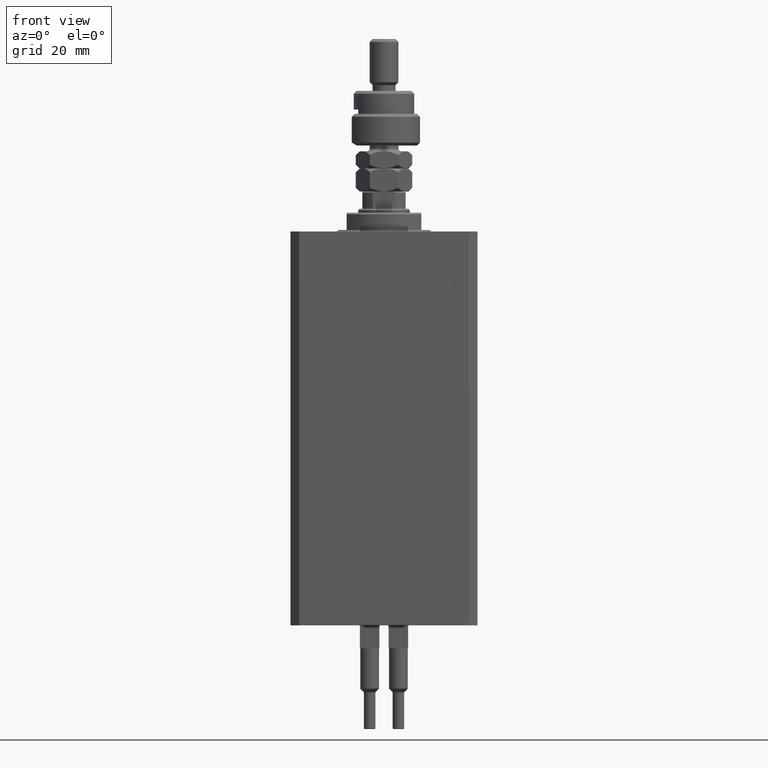
[diagram: clean part render]
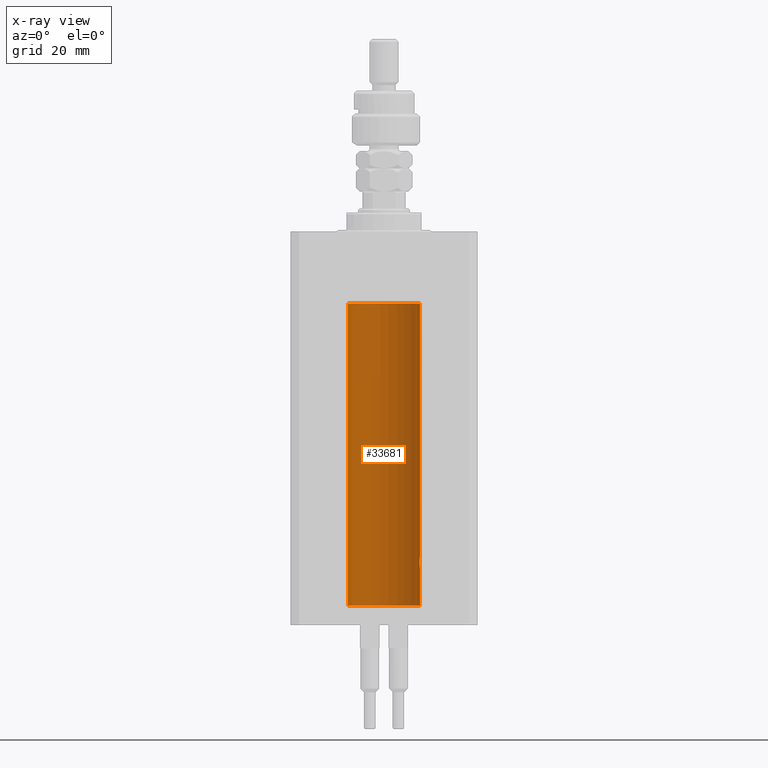
[diagram: x-ray — body ghosted, one internal face saturated and labeled with its STEP entity id]
A machine part, front view, then the same camera in x-ray: the body is ghosted and one INTERNAL B-rep face — a face not visible from any outside direction — is saturated and labeled: STEP entity #33681.
In plain terms, the highlighted cylindrical surface (edge-blend (fillet) strip) has radius 12.5 mm, axis along (0, 0, 1).
Its self-contained STEP definition (entity closure, byte-faithful):
#34 = ORIENTED_EDGE ( 'NONE', *, *, #10810, .T. ) ;
#244 = ORIENTED_EDGE ( 'NONE', *, *, #25329, .T. ) ;
#469 = CYLINDRICAL_SURFACE ( 'NONE', #16538, 12.50000000000000000 ) ;
#1105 = CARTESIAN_POINT ( 'NONE',  ( 12.34110728646152388, 1.986893050944454453, -114.7366134776498541 ) ) ;
#1385 = CARTESIAN_POINT ( 'NONE',  ( 12.50000000000000000, 0.000000000000000000, -130.0999999999999943 ) ) ;
#3225 = EDGE_CURVE ( 'NONE', #36380, #7793, #26265, .T. ) ;
#3846 = VERTEX_POINT ( 'NONE', #20055 ) ;
#5346 = CARTESIAN_POINT ( 'NONE',  ( 0.000000000000000000, 0.000000000000000000, -25.10000000000000142 ) ) ;
#5688 = LINE ( 'NONE', #21364, #40889 ) ;
#6203 = CARTESIAN_POINT ( 'NONE',  ( 12.50000000000000000, 2.320363022323678888E-15, -117.0000000000000142 ) ) ;
#6712 = CIRCLE ( 'NONE', #12438, 12.50000000000000000 ) ;
#6849 = DIRECTION ( 'NONE',  ( 1.000000000000000000, 0.000000000000000000, 0.000000000000000000 ) ) ;
#7046 = ORIENTED_EDGE ( 'NONE', *, *, #34419, .T. ) ;
#7421 = DIRECTION ( 'NONE',  ( -0.000000000000000000, -0.000000000000000000, 1.000000000000000000 ) ) ;
#7793 = VERTEX_POINT ( 'NONE', #9129 ) ;
#8812 = CARTESIAN_POINT ( 'NONE',  ( 12.34924836377099844, 1.935649219704934865, -114.4800206212716631 ) ) ;
#9129 = CARTESIAN_POINT ( 'NONE',  ( 12.33896267925302759, 2.000000000000247802, -115.0000000000000142 ) ) ;
#9410 = CARTESIAN_POINT ( 'NONE',  ( -12.50000000000000000, 1.530808498934191521E-15, -130.0999999999999943 ) ) ;
#10810 = EDGE_CURVE ( 'NONE', #16722, #13413, #6712, .T. ) ;
#11659 = CARTESIAN_POINT ( 'NONE',  ( 12.43037348241797524, 1.320834183883837554, -113.4924383770429728 ) ) ;
#12037 = FACE_OUTER_BOUND ( 'NONE', #40180, .T. ) ;
#12158 = CARTESIAN_POINT ( 'NONE',  ( 12.33896267925302759, 2.000000000000247802, -115.0000000000000142 ) ) ;
#12438 = AXIS2_PLACEMENT_3D ( 'NONE', #5346, #44689, #21025 ) ;
#13413 = VERTEX_POINT ( 'NONE', #40902 ) ;
#14267 = CARTESIAN_POINT ( 'NONE',  ( 12.50000000000000000, 0.000000000000000000, -25.10000000000000142 ) ) ;
#14540 = CARTESIAN_POINT ( 'NONE',  ( 12.43016561391612917, 1.322713721413880661, -116.5057887783670196 ) ) ;
#15040 = CARTESIAN_POINT ( 'NONE',  ( 12.49789833780794446, 0.2625555164371021766, -116.9869817082214922 ) ) ;
#15518 = LINE ( 'NONE', #47171, #18572 ) ;
#15752 = CARTESIAN_POINT ( 'NONE',  ( 12.50000000000000000, -7.266276684081261841E-23, -113.0000000000000142 ) ) ;
#15997 = CARTESIAN_POINT ( 'NONE',  ( 12.48395395845270528, 0.6446573166014707423, -113.1022212421351583 ) ) ;
#16538 = AXIS2_PLACEMENT_3D ( 'NONE', #31311, #7421, #31049 ) ;
#16722 = VERTEX_POINT ( 'NONE', #14267 ) ;
#18140 = CARTESIAN_POINT ( 'NONE',  ( 12.50000000000000178, 0.1324055009716466613, -117.0000000000000426 ) ) ;
#18395 = CARTESIAN_POINT ( 'NONE',  ( 12.50000000000000000, 2.320363022323678888E-15, -117.0000000000000142 ) ) ;
#18572 = VECTOR ( 'NONE', #46660, 1000.000000000000000 ) ;
#20055 = CARTESIAN_POINT ( 'NONE',  ( 12.50000000000000000, -7.266276684081261841E-23, -113.0000000000000142 ) ) ;
#20118 = CARTESIAN_POINT ( 'NONE',  ( 12.33896267925302581, 2.000000000000247358, -114.8693470594992334 ) ) ;
#21025 = DIRECTION ( 'NONE',  ( 1.000000000000000000, 0.000000000000000000, 0.000000000000000000 ) ) ;
#21364 = CARTESIAN_POINT ( 'NONE',  ( 12.50000000000000000, 0.000000000000000000, -130.0999999999999943 ) ) ;
#22099 = VERTEX_POINT ( 'NONE', #9410 ) ;
#23733 = CARTESIAN_POINT ( 'NONE',  ( 12.44079117518645639, 1.220047488436368122, -113.4098967633508437 ) ) ;
#23966 = AXIS2_PLACEMENT_3D ( 'NONE', #50032, #34083, #6849 ) ;
#24236 = CARTESIAN_POINT ( 'NONE',  ( 12.39867611624532806, 1.590019252152828910, -113.7798449592961276 ) ) ;
#24491 = CARTESIAN_POINT ( 'NONE',  ( 12.35520276972935427, 1.897773362058238877, -114.3552827863433947 ) ) ;
#25317 = ORIENTED_EDGE ( 'NONE', *, *, #48397, .F. ) ;
#25329 = EDGE_CURVE ( 'NONE', #28961, #36380, #5688, .T. ) ;
#26114 = CARTESIAN_POINT ( 'NONE',  ( 12.44079900692650931, 1.220007525301739282, -116.5901757908366534 ) ) ;
#26265 = B_SPLINE_CURVE_WITH_KNOTS ( 'NONE', 3,
 ( #18395, #18140, #15040, #30468, #34324, #38450, #46433, #26114, #14540, #26876, #34840, #37946, #33825, #42314 ),
 .UNSPECIFIED., .F., .F.,
 ( 4, 2, 2, 2, 2, 2, 4 ),
 ( 2.254408494944823136E-18, 0.0003915305205218102386, 0.0007830610410436180920, 0.001174591561565426108, 0.001566122082087234016, 0.002349183123130850048, 0.003132244164174466730 ),
 .UNSPECIFIED. ) ;
#26876 = CARTESIAN_POINT ( 'NONE',  ( 12.39869754437268590, 1.598954131913722820, -116.2293215281301286 ) ) ;
#28080 = CARTESIAN_POINT ( 'NONE',  ( 12.49788668346399945, 0.2632864803365707607, -113.0130897583833587 ) ) ;
#28961 = VERTEX_POINT ( 'NONE', #1385 ) ;
#30468 = CARTESIAN_POINT ( 'NONE',  ( 12.48989642018887736, 0.5185418732824252919, -116.9360129218760846 ) ) ;
#31049 = DIRECTION ( 'NONE',  ( 1.000000000000000000, 0.000000000000000000, 0.000000000000000000 ) ) ;
#31311 = CARTESIAN_POINT ( 'NONE',  ( 0.000000000000000000, 0.000000000000000000, -130.0999999999999943 ) ) ;
#31690 = CARTESIAN_POINT ( 'NONE',  ( 12.48983962833819028, 0.5199974825204898288, -113.0643516080801874 ) ) ;
#32171 = VECTOR ( 'NONE', #45251, 1000.000000000000000 ) ;
#33411 = LINE ( 'NONE', #37279, #32171 ) ;
#33681 = ADVANCED_FACE ( 'NONE', ( #12037 ), #469, .F. ) ;
#33825 = CARTESIAN_POINT ( 'NONE',  ( 12.33896267925302759, 2.000000000000248246, -115.2614317422079040 ) ) ;
#33948 = EDGE_CURVE ( 'NONE', #28961, #22099, #37904, .T. ) ;
#34075 = ORIENTED_EDGE ( 'NONE', *, *, #37356, .T. ) ;
#34083 = DIRECTION ( 'NONE',  ( 0.000000000000000000, 0.000000000000000000, 1.000000000000000000 ) ) ;
#34324 = CARTESIAN_POINT ( 'NONE',  ( 12.48390005916863110, 0.6457215011736527899, -116.8974277155426904 ) ) ;
#34419 = EDGE_CURVE ( 'NONE', #3846, #16722, #33411, .T. ) ;
#34840 = CARTESIAN_POINT ( 'NONE',  ( 12.37760587642916477, 1.747868572747719229, -116.0063965316900152 ) ) ;
#35557 = CARTESIAN_POINT ( 'NONE',  ( 12.46011632531798874, 1.003644408234883434, -113.2651679968767127 ) ) ;
#35811 = CARTESIAN_POINT ( 'NONE',  ( 12.40916530024876430, 1.507117913375715990, -113.6786595504900674 ) ) ;
#36380 = VERTEX_POINT ( 'NONE', #6203 ) ;
#37050 = DIRECTION ( 'NONE',  ( -0.000000000000000000, -0.000000000000000000, 1.000000000000000000 ) ) ;
#37279 = CARTESIAN_POINT ( 'NONE',  ( 12.50000000000000000, 0.000000000000000000, -130.0999999999999943 ) ) ;
#37356 = EDGE_CURVE ( 'NONE', #7793, #3846, #44215, .T. ) ;
#37904 = CIRCLE ( 'NONE', #23966, 12.50000000000000000 ) ;
#37946 = CARTESIAN_POINT ( 'NONE',  ( 12.34779119491631683, 1.947363444907009633, -115.5250277516825861 ) ) ;
#38450 = CARTESIAN_POINT ( 'NONE',  ( 12.46901623405144122, 0.8878913781257877780, -116.7968965171755258 ) ) ;
#39921 = CARTESIAN_POINT ( 'NONE',  ( 12.37925647381943506, 1.734744884174218571, -113.9962073259865321 ) ) ;
#40173 = CARTESIAN_POINT ( 'NONE',  ( 12.37021546997940291, 1.797317011867403114, -114.1129511974108510 ) ) ;
#40180 = EDGE_LOOP ( 'NONE', ( #25317, #45508, #244, #42246, #34075, #7046, #34 ) ) ;
#40889 = VECTOR ( 'NONE', #37050, 1000.000000000000000 ) ;
#40902 = CARTESIAN_POINT ( 'NONE',  ( -12.50000000000000000, 1.530808498934191521E-15, -25.10000000000000142 ) ) ;
#42246 = ORIENTED_EDGE ( 'NONE', *, *, #3225, .T. ) ;
#42314 = CARTESIAN_POINT ( 'NONE',  ( 12.33896267925302759, 2.000000000000247802, -115.0000000000000142 ) ) ;
#43025 = CARTESIAN_POINT ( 'NONE',  ( 12.49999999999999822, 0.1306079576516667173, -113.0000000000000284 ) ) ;
#44215 = B_SPLINE_CURVE_WITH_KNOTS ( 'NONE', 3,
 ( #12158, #20118, #1105, #8812, #24491, #40173, #39921, #24236, #35811, #11659, #23733, #35557, #47146, #15997, #31690, #28080, #43025, #15752 ),
 .UNSPECIFIED., .F., .F.,
 ( 4, 2, 2, 2, 2, 2, 2, 2, 4 ),
 ( 0.003132244164174466730, 0.003523586189974241625, 0.003914928215774016521, 0.004306270241573791416, 0.004697612267373566311, 0.005088954293173341206, 0.005480296318973116101, 0.005871638344772890997, 0.006262980370572665892 ),
 .UNSPECIFIED. ) ;
#44689 = DIRECTION ( 'NONE',  ( 0.000000000000000000, 0.000000000000000000, 1.000000000000000000 ) ) ;
#45251 = DIRECTION ( 'NONE',  ( -0.000000000000000000, -0.000000000000000000, 1.000000000000000000 ) ) ;
#45508 = ORIENTED_EDGE ( 'NONE', *, *, #33948, .F. ) ;
#46433 = CARTESIAN_POINT ( 'NONE',  ( 12.46019522898365217, 1.002712894177336223, -116.7354089602759899 ) ) ;
#46660 = DIRECTION ( 'NONE',  ( -0.000000000000000000, -0.000000000000000000, 1.000000000000000000 ) ) ;
#47146 = CARTESIAN_POINT ( 'NONE',  ( 12.46910683544638232, 0.8866026273585037032, -113.2024786368969700 ) ) ;
#47171 = CARTESIAN_POINT ( 'NONE',  ( -12.50000000000000000, 1.530808498934191521E-15, -130.0999999999999943 ) ) ;
#48397 = EDGE_CURVE ( 'NONE', #22099, #13413, #15518, .T. ) ;
#50032 = CARTESIAN_POINT ( 'NONE',  ( 0.000000000000000000, 0.000000000000000000, -130.0999999999999943 ) ) ;